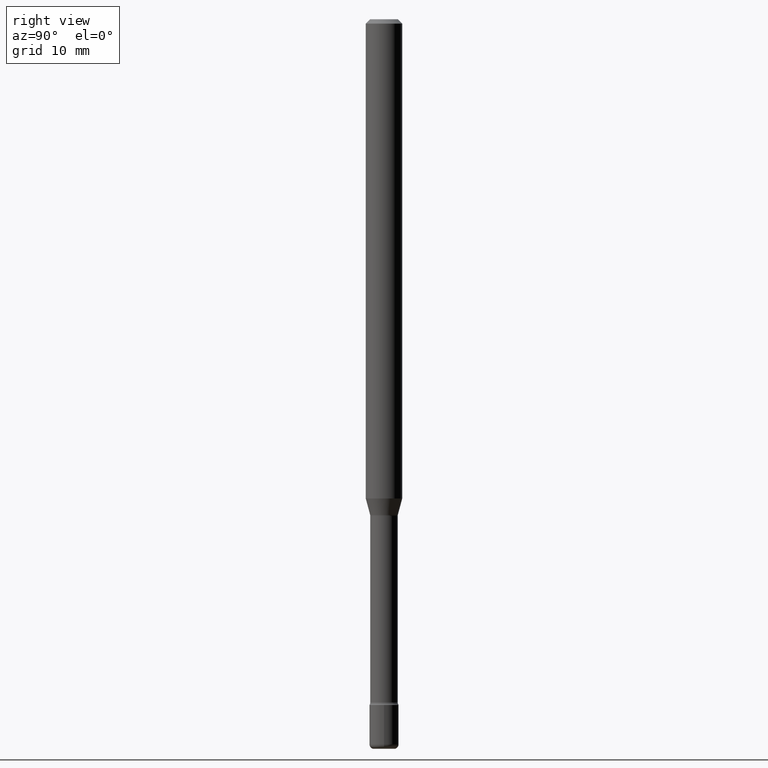
[diagram: clean part render]
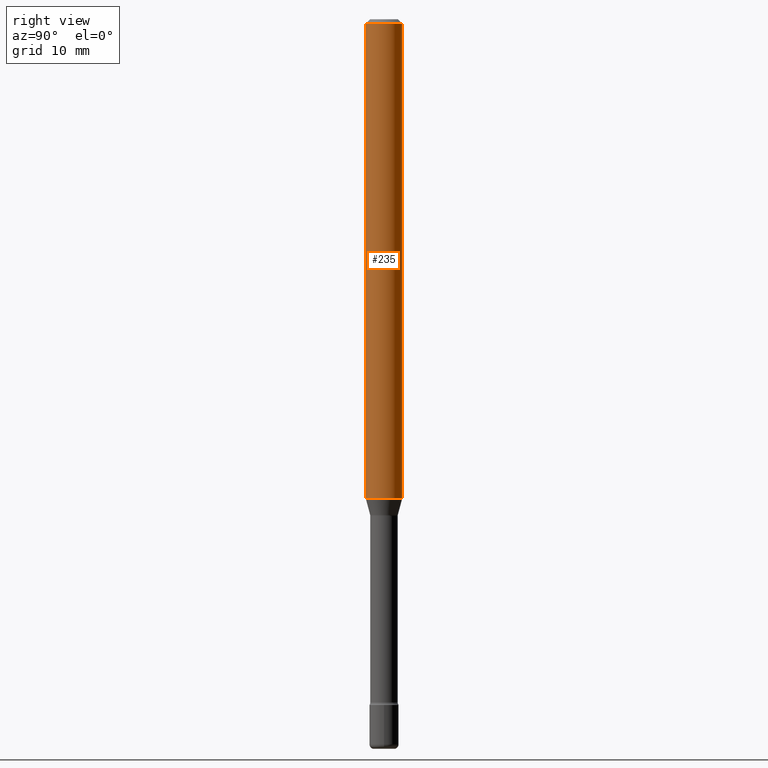
[diagram: same view with one face highlighted and labeled with its STEP entity id]
A machine part, right view. The second image highlights one B-rep face of the part: STEP entity #235.
In plain terms, the highlighted cylindrical surface (edge-blend (fillet) strip) has radius 1.5875 mm, axis along (-0, 0, 1).
Its self-contained STEP definition (entity closure, byte-faithful):
#8 = EDGE_LOOP ( 'NONE', ( #225, #57, #90, #558 ) ) ;
#13 = CARTESIAN_POINT ( 'NONE',  ( -1.169113584055446105E-44, 1.669184350826100908E-30, 4.780733988912460139E-16 ) ) ;
#23 = DIRECTION ( 'NONE',  ( -2.445541428082492260E-29, 3.491377340152750324E-15, 1.000000000000000000 ) ) ;
#57 = ORIENTED_EDGE ( 'NONE', *, *, #362, .T. ) ;
#87 = VERTEX_POINT ( 'NONE', #131 ) ;
#90 = ORIENTED_EDGE ( 'NONE', *, *, #137, .F. ) ;
#101 = EDGE_CURVE ( 'NONE', #87, #139, #177, .T. ) ;
#109 = CARTESIAN_POINT ( 'NONE',  ( 4.440892098500625669E-16, 0.06250000000000000000, 2.598623151316991680E-16 ) ) ;
#116 = DIRECTION ( 'NONE',  ( -2.445541428082492260E-29, 3.491377340152750324E-15, 1.000000000000000000 ) ) ;
#131 = CARTESIAN_POINT ( 'NONE',  ( -4.364351673553512403E-16, -0.06250000000000568989, -1.642153212482682312 ) ) ;
#137 = EDGE_CURVE ( 'NONE', #341, #389, #212, .T. ) ;
#139 = VERTEX_POINT ( 'NONE', #237 ) ;
#143 = CARTESIAN_POINT ( 'NONE',  ( -4.364351673553916201E-16, -0.06250000000000000000, 6.962844826507930571E-16 ) ) ;
#148 = CARTESIAN_POINT ( 'NONE',  ( 3.668312142123745187E-31, -5.237066010229135864E-17, -0.01500000000000002720 ) ) ;
#152 = LINE ( 'NONE', #143, #373 ) ;
#177 = CIRCLE ( 'NONE', #414, 0.06250000000000000000 ) ;
#183 = DIRECTION ( 'NONE',  ( -6.982962677686265922E-15, -1.000000000000000000, 4.370956789862821150E-15 ) ) ;
#187 = DIRECTION ( 'NONE',  ( -2.445541428082492260E-29, 3.491377340152750324E-15, 1.000000000000000000 ) ) ;
#195 = CARTESIAN_POINT ( 'NONE',  ( 4.015953712385151571E-29, -5.733376515121082978E-15, -1.642153212482682756 ) ) ;
#197 = EDGE_CURVE ( 'NONE', #87, #341, #152, .T. ) ;
#198 = CARTESIAN_POINT ( 'NONE',  ( 4.440892098501030453E-16, 0.06249999999999995143, -0.01500000000000024578 ) ) ;
#212 = CIRCLE ( 'NONE', #539, 0.06250000000000000000 ) ;
#225 = ORIENTED_EDGE ( 'NONE', *, *, #101, .T. ) ;
#232 = AXIS2_PLACEMENT_3D ( 'NONE', #13, #187, #544 ) ;
#235 = ADVANCED_FACE ( 'NONE', ( #450 ), #408, .T. ) ;
#237 = CARTESIAN_POINT ( 'NONE',  ( 4.440892098501028481E-16, 0.06249999999999429623, -1.642153212482682978 ) ) ;
#325 = DIRECTION ( 'NONE',  ( -6.982962677686265922E-15, -1.000000000000000000, 3.483106191921935554E-15 ) ) ;
#330 = DIRECTION ( 'NONE',  ( -2.445541428082492260E-29, 3.491377340152750324E-15, 1.000000000000000000 ) ) ;
#334 = CARTESIAN_POINT ( 'NONE',  ( -4.364351673553912750E-16, -0.06250000000000005551, -0.01499999999999981036 ) ) ;
#339 = LINE ( 'NONE', #109, #512 ) ;
#341 = VERTEX_POINT ( 'NONE', #334 ) ;
#362 = EDGE_CURVE ( 'NONE', #139, #389, #339, .T. ) ;
#373 = VECTOR ( 'NONE', #330, 39.37007874015748143 ) ;
#389 = VERTEX_POINT ( 'NONE', #198 ) ;
#408 = CYLINDRICAL_SURFACE ( 'NONE', #232, 0.06250000000000000000 ) ;
#414 = AXIS2_PLACEMENT_3D ( 'NONE', #195, #23, #183 ) ;
#450 = FACE_OUTER_BOUND ( 'NONE', #8, .T. ) ;
#498 = DIRECTION ( 'NONE',  ( -2.445541428082492260E-29, 3.491377340152750324E-15, 1.000000000000000000 ) ) ;
#512 = VECTOR ( 'NONE', #116, 39.37007874015748143 ) ;
#539 = AXIS2_PLACEMENT_3D ( 'NONE', #148, #498, #325 ) ;
#544 = DIRECTION ( 'NONE',  ( -6.982962677686265922E-15, -1.000000000000000000, 3.491377340152751112E-15 ) ) ;
#558 = ORIENTED_EDGE ( 'NONE', *, *, #197, .F. ) ;